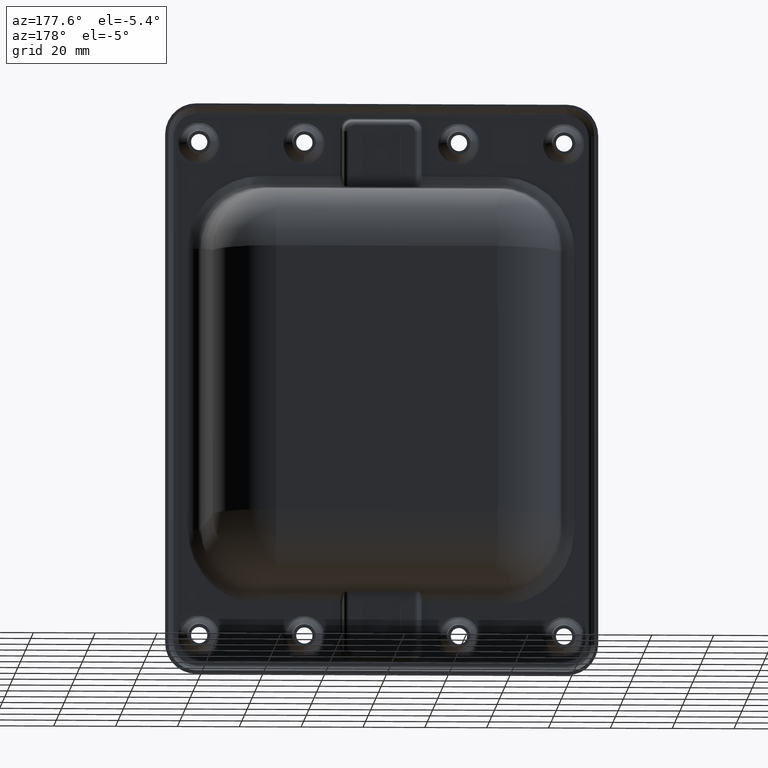
[diagram: clean part render]
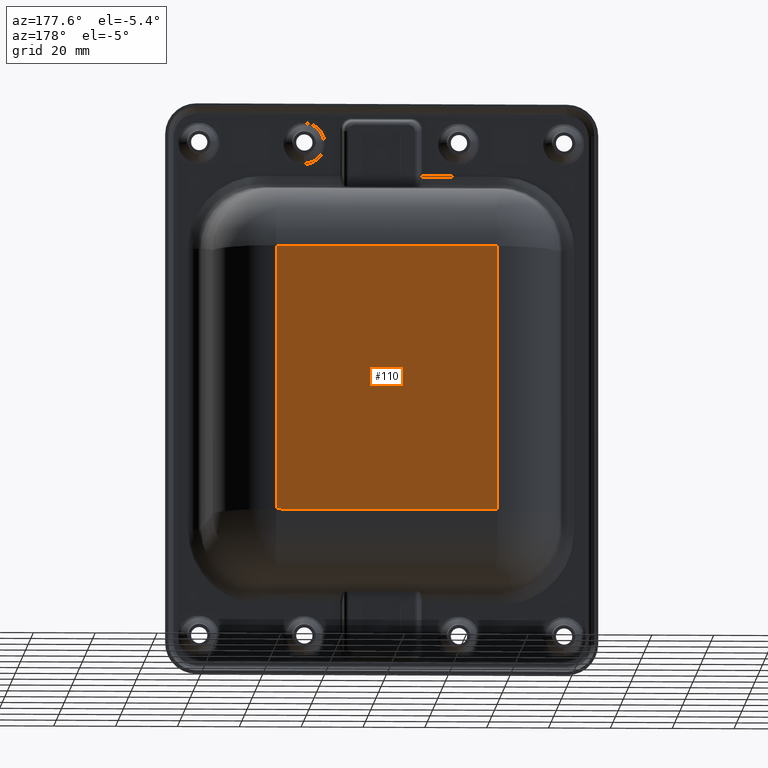
[diagram: same view with one face highlighted and labeled with its STEP entity id]
A machine part, auxiliary view. The second image highlights one B-rep face of the part: STEP entity #110.
In plain terms, the highlighted planar face has unit normal (0, -1, 0).
Its self-contained STEP definition (entity closure, byte-faithful):
#110=ADVANCED_FACE('',(#1133),#1132,.F.);
#1132=PLANE('',#5052);
#1133=FACE_OUTER_BOUND('',#5053,.T.);
#5049=CARTESIAN_POINT('',(-4.29452391525E+01,4.50000000000E+01,5.13452391525E+01));
#5050=DIRECTION('',(0.00000000000E+00,-1.00000000000E+00,0.00000000000E+00));
#5051=DIRECTION('',(0.00000000000E+00,0.00000000000E+00,-1.00000000000E+00));
#5052=AXIS2_PLACEMENT_3D('',#5049,#5050,#5051);
#5053=EDGE_LOOP('',(#9515,#9516,#9517,#9518));
#9515=ORIENTED_EDGE('',*,*,#11182,.T.);
#9516=ORIENTED_EDGE('',*,*,#11183,.T.);
#9517=ORIENTED_EDGE('',*,*,#11184,.T.);
#9518=ORIENTED_EDGE('',*,*,#11185,.T.);
#11182=EDGE_CURVE('',#13420,#13421,#13422,.T.);
#11183=EDGE_CURVE('',#13421,#13428,#13429,.T.);
#11184=EDGE_CURVE('',#13428,#13435,#13436,.T.);
#11185=EDGE_CURVE('',#13435,#13420,#13442,.T.);
#13420=VERTEX_POINT('',#18754);
#13421=VERTEX_POINT('',#18755);
#13422=LINE('',#18756,#18757);
#13428=VERTEX_POINT('',#18759);
#13429=LINE('',#18760,#18761);
#13435=VERTEX_POINT('',#18763);
#13436=LINE('',#18764,#18765);
#13442=LINE('',#18767,#18768);
#18754=CARTESIAN_POINT('',(3.57876992937E+01,4.50000000000E+01,4.27876992937E+01));
#18755=CARTESIAN_POINT('',(3.57876992937E+01,4.50000000000E+01,-4.27876992937E+01));
#18756=CARTESIAN_POINT('',(3.57876992937E+01,4.50000000000E+01,4.27876992937E+01));
#18757=VECTOR('',#18758,8.55753985874E+01);
#18758=DIRECTION('',(0.00000000000E+00,0.00000000000E+00,-1.00000000000E+00));
#18759=CARTESIAN_POINT('',(-3.57876992937E+01,4.50000000000E+01,-4.27876992937E+01));
#18760=CARTESIAN_POINT('',(3.57876992937E+01,4.50000000000E+01,-4.27876992937E+01));
#18761=VECTOR('',#18762,7.15753985874E+01);
#18762=DIRECTION('',(-1.00000000000E+00,0.00000000000E+00,0.00000000000E+00));
#18763=CARTESIAN_POINT('',(-3.57876992937E+01,4.50000000000E+01,4.27876992937E+01));
#18764=CARTESIAN_POINT('',(-3.57876992937E+01,4.50000000000E+01,-4.27876992937E+01));
#18765=VECTOR('',#18766,8.55753985874E+01);
#18766=DIRECTION('',(0.00000000000E+00,0.00000000000E+00,1.00000000000E+00));
#18767=CARTESIAN_POINT('',(-3.57876992937E+01,4.50000000000E+01,4.27876992937E+01));
#18768=VECTOR('',#18769,7.15753985874E+01);
#18769=DIRECTION('',(1.00000000000E+00,0.00000000000E+00,0.00000000000E+00));